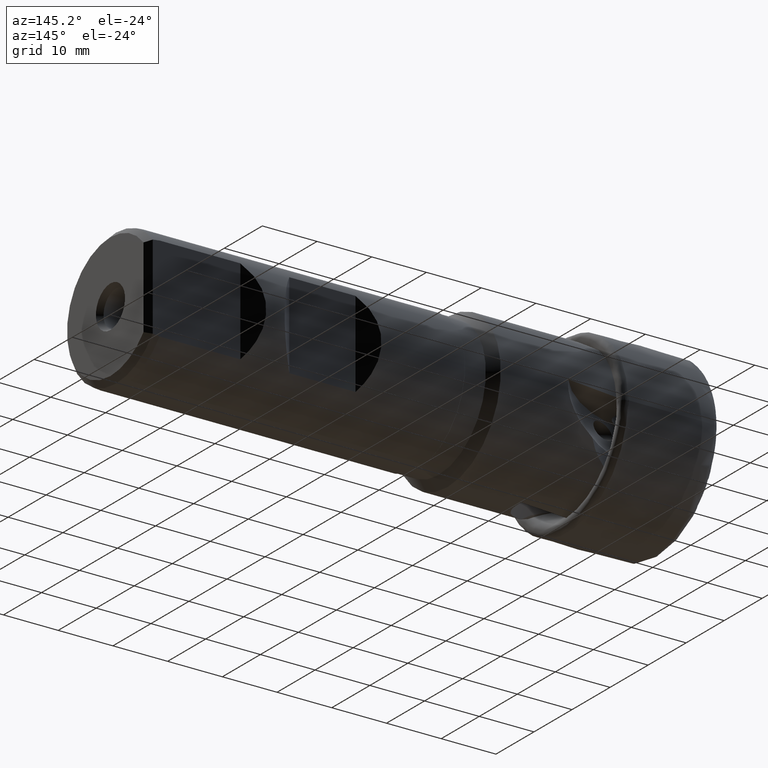
[diagram: clean part render]
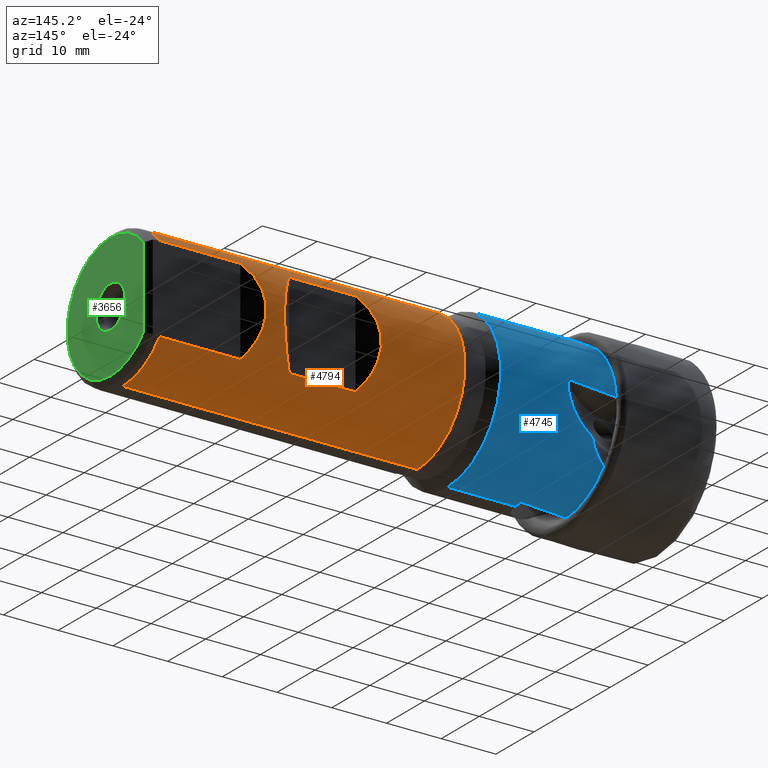
[diagram: same view with three faces highlighted in distinct colors, each labeled with its STEP entity id]
A machine part, auxiliary view with three faces highlighted in distinct colors.
Their STEP definitions:

[orange] entity #4794 — the highlighted cylindrical surface (partial cylindrical patch) has radius 12.5 mm, axis along (-1, -0, -0).
#35 =( BOUNDED_CURVE ( )  B_SPLINE_CURVE ( 3, ( #4806, #4804, #4801, #4802 ),
 .UNSPECIFIED., .F., .T. ) 
 B_SPLINE_CURVE_WITH_KNOTS ( ( 4, 4 ),
 ( 5.600687989903613100, 6.965682624455559400 ),
 .UNSPECIFIED. ) 
 CURVE ( )  GEOMETRIC_REPRESENTATION_ITEM ( )  RATIONAL_B_SPLINE_CURVE ( ( 1.000000000000000000, 0.8506666666666660200, 0.8506666666666660200, 1.000000000000000000 ) ) 
 REPRESENTATION_ITEM ( '' )  );
#38 =( BOUNDED_CURVE ( )  B_SPLINE_CURVE ( 3, ( #1768, #1692, #3803, #3804 ),
 .UNSPECIFIED., .F., .T. ) 
 B_SPLINE_CURVE_WITH_KNOTS ( ( 4, 4 ),
 ( 2.459095336313821300, 3.824089970865765000 ),
 .UNSPECIFIED. ) 
 CURVE ( )  GEOMETRIC_REPRESENTATION_ITEM ( )  RATIONAL_B_SPLINE_CURVE ( ( 1.000000000000000000, 0.8506666666666666800, 0.8506666666666666800, 1.000000000000000000 ) ) 
 REPRESENTATION_ITEM ( '' )  );
#192 = VECTOR ( 'NONE', #1654, 1000.000000000000000 ) ;
#193 = LINE ( 'NONE', #1661, #192 ) ;
#199 = CIRCLE ( 'NONE', #4656, 12.50000000000000000 ) ;
#202 = LINE ( 'NONE', #1804, #203 ) ;
#203 = VECTOR ( 'NONE', #1647, 1000.000000000000000 ) ;
#206 = CIRCLE ( 'NONE', #4662, 12.50000000000000000 ) ;
#1647 = DIRECTION ( 'NONE',  ( -1.000000000000000000, -0.0000000000000000000, -0.0000000000000000000 ) ) ;
#1654 = DIRECTION ( 'NONE',  ( -1.000000000000000000, -0.0000000000000000000, -0.0000000000000000000 ) ) ;
#1661 = CARTESIAN_POINT ( 'NONE',  ( -2.103352214621875100E-015, 9.699999999999983300, 7.884161337770832400 ) ) ;
#1692 = CARTESIAN_POINT ( 'NONE',  ( 77.04717868338553900, 13.59717868338557900, -3.089404912919598200 ) ) ;
#1747 = DIRECTION ( 'NONE',  ( 1.000000000000000000, 0.0000000000000000000, 0.0000000000000000000 ) ) ;
#1760 = DIRECTION ( 'NONE',  ( 0.0000000000000000000, 0.0000000000000000000, -1.000000000000000000 ) ) ;
#1768 = CARTESIAN_POINT ( 'NONE',  ( 73.14999999999999100, 9.699999999999999300, -7.884161337770813700 ) ) ;
#1781 = CARTESIAN_POINT ( 'NONE',  ( 43.00000000000000000, 0.0000000000000000000, 0.0000000000000000000 ) ) ;
#1804 = CARTESIAN_POINT ( 'NONE',  ( 0.0000000000000000000, 9.699999999999999300, 7.884161337770813700 ) ) ;
#2414 = AXIS2_PLACEMENT_3D ( 'NONE', #2793, #2794, #2792 ) ;
#2424 = AXIS2_PLACEMENT_3D ( 'NONE', #3314, #3315, #3316 ) ;
#2543 = FACE_BOUND ( 'NONE', #4897, .T. ) ;
#2551 = FACE_OUTER_BOUND ( 'NONE', #4892, .T. ) ;
#2553 = CYLINDRICAL_SURFACE ( 'NONE', #2414, 12.50000000000000000 ) ;
#2561 = CIRCLE ( 'NONE', #2424, 12.50000000000000000 ) ;
#2563 = LINE ( 'NONE', #3353, #2569 ) ;
#2568 = LINE ( 'NONE', #3415, #2573 ) ;
#2569 = VECTOR ( 'NONE', #3354, 1000.000000000000000 ) ;
#2572 = LINE ( 'NONE', #3417, #2575 ) ;
#2573 = VECTOR ( 'NONE', #3416, 1000.000000000000000 ) ;
#2575 = VECTOR ( 'NONE', #3418, 1000.000000000000000 ) ;
#2587 = LINE ( 'NONE', #3493, #2590 ) ;
#2590 = VECTOR ( 'NONE', #3494, 1000.000000000000000 ) ;
#2792 = DIRECTION ( 'NONE',  ( 0.0000000000000000000, 0.0000000000000000000, 1.000000000000000000 ) ) ;
#2793 = CARTESIAN_POINT ( 'NONE',  ( 0.0000000000000000000, 0.0000000000000000000, 0.0000000000000000000 ) ) ;
#2794 = DIRECTION ( 'NONE',  ( -1.000000000000000000, -0.0000000000000000000, -0.0000000000000000000 ) ) ;
#3036 = CARTESIAN_POINT ( 'NONE',  ( 96.84999999999998000, 1.530808498934191500E-015, -12.50000000000000000 ) ) ;
#3038 = CARTESIAN_POINT ( 'NONE',  ( 61.04999999999999000, 9.699999999999999300, -7.884161337770820800 ) ) ;
#3102 = CARTESIAN_POINT ( 'NONE',  ( 73.14999999999999100, 9.699999999999999300, 7.884161337770813700 ) ) ;
#3115 = CARTESIAN_POINT ( 'NONE',  ( 96.84999999999998000, 9.699999999999983300, -7.884161337770832400 ) ) ;
#3186 = CARTESIAN_POINT ( 'NONE',  ( 96.84999999999998000, 0.0000000000000000000, 12.50000000000000000 ) ) ;
#3207 = CARTESIAN_POINT ( 'NONE',  ( 73.14999999999999100, 9.699999999999999300, -7.884161337770813700 ) ) ;
#3238 = CARTESIAN_POINT ( 'NONE',  ( 43.00000000000000000, 0.0000000000000000000, -12.50000000000000400 ) ) ;
#3240 = CARTESIAN_POINT ( 'NONE',  ( 43.00000000000000000, 1.530808498934191900E-015, 12.50000000000000400 ) ) ;
#3250 = CARTESIAN_POINT ( 'NONE',  ( 82.09999999999999400, 9.700000000000001100, -7.884161337770832400 ) ) ;
#3255 = CARTESIAN_POINT ( 'NONE',  ( 61.04999999999999000, 9.699999999999999300, 7.884161337770820800 ) ) ;
#3265 = CARTESIAN_POINT ( 'NONE',  ( 96.84999999999998000, 9.700000000000004600, 7.884161337770806600 ) ) ;
#3270 = CARTESIAN_POINT ( 'NONE',  ( 82.09999999999999400, 9.700000000000001100, 7.884161337770806600 ) ) ;
#3314 = CARTESIAN_POINT ( 'NONE',  ( 96.84999999999998000, 0.0000000000000000000, 0.0000000000000000000 ) ) ;
#3315 = DIRECTION ( 'NONE',  ( -1.000000000000000000, -0.0000000000000000000, -0.0000000000000000000 ) ) ;
#3316 = DIRECTION ( 'NONE',  ( 0.0000000000000000000, 0.0000000000000000000, 1.000000000000000000 ) ) ;
#3353 = CARTESIAN_POINT ( 'NONE',  ( 0.0000000000000000000, 0.0000000000000000000, 12.50000000000000000 ) ) ;
#3354 = DIRECTION ( 'NONE',  ( -1.000000000000000000, -0.0000000000000000000, -0.0000000000000000000 ) ) ;
#3415 = CARTESIAN_POINT ( 'NONE',  ( 0.0000000000000000000, 9.699999999999999300, -7.884161337770813700 ) ) ;
#3416 = DIRECTION ( 'NONE',  ( 1.000000000000000000, 0.0000000000000000000, 0.0000000000000000000 ) ) ;
#3417 = CARTESIAN_POINT ( 'NONE',  ( -2.103352214621875100E-015, 9.699999999999983300, -7.884161337770832400 ) ) ;
#3418 = DIRECTION ( 'NONE',  ( 1.000000000000000000, 0.0000000000000000000, 0.0000000000000000000 ) ) ;
#3493 = CARTESIAN_POINT ( 'NONE',  ( 0.0000000000000000000, 1.530808498934191500E-015, -12.50000000000000000 ) ) ;
#3494 = DIRECTION ( 'NONE',  ( -1.000000000000000000, -0.0000000000000000000, -0.0000000000000000000 ) ) ;
#3588 = CARTESIAN_POINT ( 'NONE',  ( 82.09999999999999400, 9.700000000000001100, 7.884161337770806600 ) ) ;
#3589 = CARTESIAN_POINT ( 'NONE',  ( 78.20282131661443300, 13.59717868338558600, 3.089404912919591100 ) ) ;
#3594 = CARTESIAN_POINT ( 'NONE',  ( 78.20282131661443300, 13.59717868338557900, -3.089404912919611500 ) ) ;
#3595 = CARTESIAN_POINT ( 'NONE',  ( 82.09999999999999400, 9.700000000000001100, -7.884161337770832400 ) ) ;
#3748 = EDGE_CURVE ( 'NONE', #5244, #5249, #193, .T. ) ;
#3793 = DIRECTION ( 'NONE',  ( 0.0000000000000000000, 0.0000000000000000000, 1.000000000000000000 ) ) ;
#3799 = DIRECTION ( 'NONE',  ( -1.000000000000000000, -0.0000000000000000000, -0.0000000000000000000 ) ) ;
#3803 = CARTESIAN_POINT ( 'NONE',  ( 77.04717868338553900, 13.59717868338558400, 3.089404912919595500 ) ) ;
#3804 = CARTESIAN_POINT ( 'NONE',  ( 73.14999999999999100, 9.699999999999999300, 7.884161337770813700 ) ) ;
#3820 = CARTESIAN_POINT ( 'NONE',  ( 96.84999999999998000, 0.0000000000000000000, 0.0000000000000000000 ) ) ;
#4225 = EDGE_CURVE ( 'NONE', #5217, #5219, #199, .T. ) ;
#4298 = EDGE_CURVE ( 'NONE', #5082, #5234, #202, .T. ) ;
#4303 = EDGE_CURVE ( 'NONE', #5186, #5082, #38, .T. ) ;
#4305 = EDGE_CURVE ( 'NONE', #5094, #5049, #206, .T. ) ;
#4309 = EDGE_CURVE ( 'NONE', #5234, #5050, #35, .T. ) ;
#4656 = AXIS2_PLACEMENT_3D ( 'NONE', #1781, #1747, #1760 ) ;
#4662 = AXIS2_PLACEMENT_3D ( 'NONE', #3820, #3799, #3793 ) ;
#4794 = ADVANCED_FACE ( 'NONE', ( #2543, #2551 ), #2553, .T. ) ;
#4801 = CARTESIAN_POINT ( 'NONE',  ( 57.15282131661440700, 13.59717868338558600, -3.089404912919603500 ) ) ;
#4802 = CARTESIAN_POINT ( 'NONE',  ( 61.04999999999999000, 9.699999999999999300, -7.884161337770820800 ) ) ;
#4804 = CARTESIAN_POINT ( 'NONE',  ( 57.15282131661440700, 13.59717868338558600, 3.089404912919605700 ) ) ;
#4806 = CARTESIAN_POINT ( 'NONE',  ( 61.04999999999999000, 9.699999999999999300, 7.884161337770820800 ) ) ;
#4892 = EDGE_LOOP ( 'NONE', ( #5268, #5339, #5369, #5301, #5303, #5330, #5331, #5332 ) ) ;
#4897 = EDGE_LOOP ( 'NONE', ( #5279, #5300, #5299, #5269 ) ) ;
#5049 = VERTEX_POINT ( 'NONE', #3036 ) ;
#5050 = VERTEX_POINT ( 'NONE', #3038 ) ;
#5082 = VERTEX_POINT ( 'NONE', #3102 ) ;
#5094 = VERTEX_POINT ( 'NONE', #3115 ) ;
#5165 = VERTEX_POINT ( 'NONE', #3186 ) ;
#5186 = VERTEX_POINT ( 'NONE', #3207 ) ;
#5217 = VERTEX_POINT ( 'NONE', #3238 ) ;
#5219 = VERTEX_POINT ( 'NONE', #3240 ) ;
#5229 = VERTEX_POINT ( 'NONE', #3250 ) ;
#5234 = VERTEX_POINT ( 'NONE', #3255 ) ;
#5244 = VERTEX_POINT ( 'NONE', #3265 ) ;
#5249 = VERTEX_POINT ( 'NONE', #3270 ) ;
#5268 = ORIENTED_EDGE ( 'NONE', *, *, #4305, .T. ) ;
#5269 = ORIENTED_EDGE ( 'NONE', *, *, #5601, .T. ) ;
#5279 = ORIENTED_EDGE ( 'NONE', *, *, #4303, .T. ) ;
#5299 = ORIENTED_EDGE ( 'NONE', *, *, #4309, .T. ) ;
#5300 = ORIENTED_EDGE ( 'NONE', *, *, #4298, .T. ) ;
#5301 = ORIENTED_EDGE ( 'NONE', *, *, #5457, .F. ) ;
#5303 = ORIENTED_EDGE ( 'NONE', *, *, #5455, .T. ) ;
#5330 = ORIENTED_EDGE ( 'NONE', *, *, #3748, .T. ) ;
#5331 = ORIENTED_EDGE ( 'NONE', *, *, #5919, .T. ) ;
#5332 = ORIENTED_EDGE ( 'NONE', *, *, #5602, .T. ) ;
#5339 = ORIENTED_EDGE ( 'NONE', *, *, #5895, .T. ) ;
#5369 = ORIENTED_EDGE ( 'NONE', *, *, #4225, .T. ) ;
#5455 = EDGE_CURVE ( 'NONE', #5165, #5244, #2561, .T. ) ;
#5457 = EDGE_CURVE ( 'NONE', #5165, #5219, #2563, .T. ) ;
#5495 =( BOUNDED_CURVE ( )  B_SPLINE_CURVE ( 3, ( #3588, #3589, #3594, #3595 ),
 .UNSPECIFIED., .F., .F. ) 
 B_SPLINE_CURVE_WITH_KNOTS ( ( 4, 4 ),
 ( 5.600687989903614800, 6.965682624455559400 ),
 .UNSPECIFIED. ) 
 CURVE ( )  GEOMETRIC_REPRESENTATION_ITEM ( )  RATIONAL_B_SPLINE_CURVE ( ( 1.000000000000000000, 0.8506666666666664600, 0.8506666666666664600, 1.000000000000000000 ) ) 
 REPRESENTATION_ITEM ( '' )  );
#5601 = EDGE_CURVE ( 'NONE', #5050, #5186, #2568, .T. ) ;
#5602 = EDGE_CURVE ( 'NONE', #5229, #5094, #2572, .T. ) ;
#5895 = EDGE_CURVE ( 'NONE', #5049, #5217, #2587, .T. ) ;
#5919 = EDGE_CURVE ( 'NONE', #5249, #5229, #5495, .T. ) ;

[blue] entity #4745 — the highlighted cylindrical surface (partial cylindrical patch) has radius 14 mm, axis along (-1, -0, -0).
#10 = B_SPLINE_CURVE_WITH_KNOTS ( 'NONE', 3,
 ( #648, #646, #644, #649, #650, #651, #652, #653, #654, #655, #656, #657, #658, #659 ),
 .UNSPECIFIED., .F., .F.,
 ( 4, 2, 2, 2, 2, 2, 4 ),
 ( 0.002489108446999668900, 0.004653805925197981200, 0.006818503403396293900, 0.007900852142495449300, 0.008983200881594604800, 0.01006554962069376200, 0.01114789835979291800 ),
 .UNSPECIFIED. ) ;
#34 = B_SPLINE_CURVE_WITH_KNOTS ( 'NONE', 3,
 ( #5503, #5504, #5532, #4281, #4287, #4282 ),
 .UNSPECIFIED., .F., .F.,
 ( 4, 2, 4 ),
 ( 0.01114789835979289000, 0.01192257297657446000, 0.01269724759335602900 ),
 .UNSPECIFIED. ) ;
#196 = CIRCLE ( 'NONE', #4655, 14.00000000000000000 ) ;
#208 = LINE ( 'NONE', #3830, #215 ) ;
#215 = VECTOR ( 'NONE', #631, 1000.000000000000000 ) ;
#221 = CIRCLE ( 'NONE', #4668, 14.00000000000000000 ) ;
#284 = LINE ( 'NONE', #1013, #287 ) ;
#287 = VECTOR ( 'NONE', #1015, 1000.000000000000000 ) ;
#301 = CIRCLE ( 'NONE', #4680, 14.00000000000000000 ) ;
#531 = FACE_OUTER_BOUND ( 'NONE', #4948, .T. ) ;
#550 = CYLINDRICAL_SURFACE ( 'NONE', #2361, 14.00000000000000000 ) ;
#631 = DIRECTION ( 'NONE',  ( -1.000000000000000000, -0.0000000000000000000, -0.0000000000000000000 ) ) ;
#644 = CARTESIAN_POINT ( 'NONE',  ( 21.05239786403081900, 5.576336529999395900, 12.84884781127164600 ) ) ;
#646 = CARTESIAN_POINT ( 'NONE',  ( 20.43754586483774100, 5.922342788448008700, 12.69023503202999100 ) ) ;
#648 = CARTESIAN_POINT ( 'NONE',  ( 19.80157853539212100, 6.227652904653830000, 12.53859399211742200 ) ) ;
#649 = CARTESIAN_POINT ( 'NONE',  ( 22.22636501476602100, 4.769628578532325100, 13.16962650935376900 ) ) ;
#650 = CARTESIAN_POINT ( 'NONE',  ( 22.77268834391250600, 4.317821035556701000, 13.32836116234083300 ) ) ;
#651 = CARTESIAN_POINT ( 'NONE',  ( 23.50820060099896800, 3.542005159391010200, 13.54719147620936100 ) ) ;
#652 = CARTESIAN_POINT ( 'NONE',  ( 23.74023276409230100, 3.265088439110581200, 13.61714298156216100 ) ) ;
#653 = CARTESIAN_POINT ( 'NONE',  ( 24.15832906061250500, 2.687381880522208700, 13.74282955303463200 ) ) ;
#654 = CARTESIAN_POINT ( 'NONE',  ( 24.34602081103046700, 2.385245480152957700, 13.79904544336001100 ) ) ;
#655 = CARTESIAN_POINT ( 'NONE',  ( 24.67268263904129800, 1.750255194243713500, 13.89387123531551000 ) ) ;
#656 = CARTESIAN_POINT ( 'NONE',  ( 24.81231664466189100, 1.415614675867816100, 13.93265634214685100 ) ) ;
#657 = CARTESIAN_POINT ( 'NONE',  ( 25.03000976073055700, 0.7165721249858765200, 13.98604311621376400 ) ) ;
#658 = CARTESIAN_POINT ( 'NONE',  ( 25.10545616064919400, 0.3613048030773800000, 14.00000000000000000 ) ) ;
#659 = CARTESIAN_POINT ( 'NONE',  ( 25.14587864204081700, 3.653085149169856900E-016, 14.00000000000000000 ) ) ;
#759 = CARTESIAN_POINT ( 'NONE',  ( 37.50000000000000000, 0.0000000000000000000, 0.0000000000000000000 ) ) ;
#760 = DIRECTION ( 'NONE',  ( -1.000000000000000000, -0.0000000000000000000, -0.0000000000000000000 ) ) ;
#761 = DIRECTION ( 'NONE',  ( 0.0000000000000000000, 0.0000000000000000000, 1.000000000000000000 ) ) ;
#854 = CARTESIAN_POINT ( 'NONE',  ( 17.07051191640707800, 8.944587076885998300, 10.77987969575492500 ) ) ;
#859 = CARTESIAN_POINT ( 'NONE',  ( 20.17664456306637200, 12.73164708209774100, -5.826283693381698800 ) ) ;
#879 = CARTESIAN_POINT ( 'NONE',  ( 20.54443576102046300, 12.82007336689216400, -5.630217391787047300 ) ) ;
#880 = CARTESIAN_POINT ( 'NONE',  ( 16.35082059415270800, 9.288632180131331900, 10.47479413746297400 ) ) ;
#882 = CARTESIAN_POINT ( 'NONE',  ( 17.72518069916952000, 8.527225421992113800, 11.12102279815206400 ) ) ;
#883 = CARTESIAN_POINT ( 'NONE',  ( 18.60339112254267500, 7.758456399962644100, 11.65778858353934800 ) ) ;
#884 = CARTESIAN_POINT ( 'NONE',  ( 18.87626559755048200, 7.479779087457552900, 11.83946802189145400 ) ) ;
#885 = CARTESIAN_POINT ( 'NONE',  ( 19.37300097129360300, 6.884835730485656700, 12.19504551868445200 ) ) ;
#886 = CARTESIAN_POINT ( 'NONE',  ( 19.59853171944318700, 6.567183761543512700, 12.36995623827827200 ) ) ;
#887 = CARTESIAN_POINT ( 'NONE',  ( 19.80157853539212100, 6.227652904653830000, 12.53859399211742200 ) ) ;
#888 = CARTESIAN_POINT ( 'NONE',  ( 19.80157853539214200, 12.64537183316280700, -6.007875764449489800 ) ) ;
#890 = CARTESIAN_POINT ( 'NONE',  ( 21.26308566944063800, 12.99927192716558700, -5.203129671157907600 ) ) ;
#891 = CARTESIAN_POINT ( 'NONE',  ( 21.61548314971811300, 13.09047395589652800, -4.970905618503183900 ) ) ;
#892 = CARTESIAN_POINT ( 'NONE',  ( 22.28876591421871100, 13.26943783100323200, -4.471289602252593200 ) ) ;
#893 = CARTESIAN_POINT ( 'NONE',  ( 22.61038177865715000, 13.35736075327387300, -4.203751515653137500 ) ) ;
#894 = CARTESIAN_POINT ( 'NONE',  ( 23.21822919288820200, 13.52570578016639200, -3.625726995628679300 ) ) ;
#895 = CARTESIAN_POINT ( 'NONE',  ( 23.50668390803825900, 13.60676303934652500, -3.312336800745201900 ) ) ;
#896 = CARTESIAN_POINT ( 'NONE',  ( 24.02645569150243400, 13.75149854345351000, -2.647992314923471200 ) ) ;
#897 = CARTESIAN_POINT ( 'NONE',  ( 24.25807039769267000, 13.81524710917444500, -2.297758551223429500 ) ) ;
#898 = CARTESIAN_POINT ( 'NONE',  ( 24.55610530137917600, 13.89267118573282300, -1.740366078423546000 ) ) ;
#899 = CARTESIAN_POINT ( 'NONE',  ( 24.64717919289973500, 13.91543091294959200, -1.549202333070362800 ) ) ;
#900 = CARTESIAN_POINT ( 'NONE',  ( 24.81089743573597100, 13.95369404257581000, -1.154845413052365500 ) ) ;
#901 = CARTESIAN_POINT ( 'NONE',  ( 24.88390009257683400, 13.96924633487470600, -0.9501780156038925900 ) ) ;
#902 = CARTESIAN_POINT ( 'NONE',  ( 25.06710763338861300, 14.00217792123935800, -0.3312690220146152800 ) ) ;
#903 = CARTESIAN_POINT ( 'NONE',  ( 25.14333688134616900, 14.00633220759949000, 0.08981913422077386600 ) ) ;
#904 = CARTESIAN_POINT ( 'NONE',  ( 25.18299939675310400, 13.98233683792778900, 0.7352611082843530900 ) ) ;
#905 = CARTESIAN_POINT ( 'NONE',  ( 25.18348884357215300, 13.96919737937099100, 0.9528263366297410300 ) ) ;
#906 = CARTESIAN_POINT ( 'NONE',  ( 25.15892895005812600, 13.93329250463636600, 1.381923815499471300 ) ) ;
#907 = CARTESIAN_POINT ( 'NONE',  ( 25.13401753410794000, 13.91049857769959200, 1.594807524555168100 ) ) ;
#908 = CARTESIAN_POINT ( 'NONE',  ( 25.09664496296224100, 13.88301685378778100, 1.806057318427246400 ) ) ;
#909 = CARTESIAN_POINT ( 'NONE',  ( 16.35082059415277600, 10.63530775963411300, -9.104407111825967300 ) ) ;
#910 = CARTESIAN_POINT ( 'NONE',  ( 17.07051191640698900, 10.93434243694328200, -8.755089931154714100 ) ) ;
#919 = CARTESIAN_POINT ( 'NONE',  ( 17.72518069916941700, 11.26814961636099400, -8.331838074386109100 ) ) ;
#920 = CARTESIAN_POINT ( 'NONE',  ( 18.60339112254260400, 11.79141678029043500, -7.553818284954092900 ) ) ;
#921 = CARTESIAN_POINT ( 'NONE',  ( 18.87626559755043900, 11.96820495826141900, -7.272012672954058800 ) ) ;
#922 = CARTESIAN_POINT ( 'NONE',  ( 19.37300097129358900, 12.31334510560635200, -6.670954245743089000 ) ) ;
#923 = CARTESIAN_POINT ( 'NONE',  ( 19.59853171944319400, 12.48268539418280900, -6.350298043765784300 ) ) ;
#924 = CARTESIAN_POINT ( 'NONE',  ( 19.80157853539214200, 12.64537183316280700, -6.007875764449489800 ) ) ;
#931 = CARTESIAN_POINT ( 'NONE',  ( 19.27250211487760700, 13.94209946540497700, 1.297464517068498400 ) ) ;
#937 = CARTESIAN_POINT ( 'NONE',  ( 16.35082059415270800, 13.96115809620197900, 1.042144238027524300 ) ) ;
#938 = CARTESIAN_POINT ( 'NONE',  ( 22.18850811302833700, 13.91604585147746500, 1.552166078702372300 ) ) ;
#939 = CARTESIAN_POINT ( 'NONE',  ( 25.09664496296224100, 13.88301685378778100, 1.806057318427246400 ) ) ;
#1013 = CARTESIAN_POINT ( 'NONE',  ( 0.0000000000000000000, 0.0000000000000000000, 14.00000000000000000 ) ) ;
#1015 = DIRECTION ( 'NONE',  ( -1.000000000000000000, -0.0000000000000000000, -0.0000000000000000000 ) ) ;
#1040 = CARTESIAN_POINT ( 'NONE',  ( 16.35082059415270800, 0.0000000000000000000, 0.0000000000000000000 ) ) ;
#1041 = DIRECTION ( 'NONE',  ( 1.000000000000000000, 0.0000000000000000000, 0.0000000000000000000 ) ) ;
#1042 = DIRECTION ( 'NONE',  ( 0.0000000000000000000, 3.552713678800500900E-015, 1.000000000000000000 ) ) ;
#1063 = CARTESIAN_POINT ( 'NONE',  ( 19.27250211487760400, 1.053943720478811100, -13.96261989421615700 ) ) ;
#1073 = CARTESIAN_POINT ( 'NONE',  ( 16.35082059415270800, 0.7983297089821997900, -13.97721966900987100 ) ) ;
#1077 = CARTESIAN_POINT ( 'NONE',  ( 22.18850811302829800, 1.309061188090594000, -13.94101540355408600 ) ) ;
#1078 = CARTESIAN_POINT ( 'NONE',  ( 25.09664496296217000, 1.563490194441801800, -13.91242244944727000 ) ) ;
#1662 = CARTESIAN_POINT ( 'NONE',  ( 16.35082059415270800, 0.0000000000000000000, 0.0000000000000000000 ) ) ;
#1681 = DIRECTION ( 'NONE',  ( 0.0000000000000000000, 0.0000000000000000000, 1.000000000000000000 ) ) ;
#1703 = DIRECTION ( 'NONE',  ( 1.000000000000000000, 0.0000000000000000000, 0.0000000000000000000 ) ) ;
#2173 = DIRECTION ( 'NONE',  ( 0.0000000000000000000, 0.0000000000000000000, 1.000000000000000000 ) ) ;
#2174 = CARTESIAN_POINT ( 'NONE',  ( 0.0000000000000000000, 0.0000000000000000000, 0.0000000000000000000 ) ) ;
#2175 = DIRECTION ( 'NONE',  ( -1.000000000000000000, -0.0000000000000000000, -0.0000000000000000000 ) ) ;
#2361 = AXIS2_PLACEMENT_3D ( 'NONE', #2174, #2175, #2173 ) ;
#3044 = CARTESIAN_POINT ( 'NONE',  ( 16.35082059415277600, 10.63530775963411300, -9.104407111825967300 ) ) ;
#3088 = CARTESIAN_POINT ( 'NONE',  ( 19.80157853539214200, 12.64537183316280700, -6.007875764449489800 ) ) ;
#3113 = CARTESIAN_POINT ( 'NONE',  ( 16.35082059415270800, 13.96115809620197900, 1.042144238027524300 ) ) ;
#3137 = CARTESIAN_POINT ( 'NONE',  ( 25.14587864204081700, 3.653085149169856900E-016, 14.00000000000000000 ) ) ;
#3138 = CARTESIAN_POINT ( 'NONE',  ( 16.35082059415270800, 9.288632180131331900, 10.47479413746297400 ) ) ;
#3139 = CARTESIAN_POINT ( 'NONE',  ( 19.80157853539212100, 6.227652904653830000, 12.53859399211742200 ) ) ;
#3187 = CARTESIAN_POINT ( 'NONE',  ( 25.09664496296217000, 1.563490194441801800, -13.91242244944727000 ) ) ;
#3246 = CARTESIAN_POINT ( 'NONE',  ( 25.14587864204080200, 3.366042242601999500E-015, -14.00000000000000000 ) ) ;
#3247 = CARTESIAN_POINT ( 'NONE',  ( 37.50000000000000000, 1.714505518806294600E-015, -14.00000000000000000 ) ) ;
#3248 = CARTESIAN_POINT ( 'NONE',  ( 37.50000000000000000, 0.0000000000000000000, 14.00000000000000000 ) ) ;
#3267 = CARTESIAN_POINT ( 'NONE',  ( 25.09664496296224100, 13.88301685378778100, 1.806057318427246400 ) ) ;
#3269 = CARTESIAN_POINT ( 'NONE',  ( 16.35082059415270800, 0.7983297089821997900, -13.97721966900987100 ) ) ;
#3717 =( BOUNDED_CURVE ( )  B_SPLINE_CURVE ( 3, ( #1073, #1063, #1077, #1078 ),
 .UNSPECIFIED., .F., .T. ) 
 B_SPLINE_CURVE_WITH_KNOTS ( ( 4, 4 ),
 ( 1.627850826518227400, 1.682707650518020300 ),
 .UNSPECIFIED. ) 
 CURVE ( )  GEOMETRIC_REPRESENTATION_ITEM ( )  RATIONAL_B_SPLINE_CURVE ( ( 1.000000000000000000, 0.9997492431263840200, 0.9997492431263840200, 1.000000000000000000 ) ) 
 REPRESENTATION_ITEM ( '' )  );
#3723 =( BOUNDED_CURVE ( )  B_SPLINE_CURVE ( 3, ( #937, #931, #938, #939 ),
 .UNSPECIFIED., .F., .T. ) 
 B_SPLINE_CURVE_WITH_KNOTS ( ( 4, 4 ),
 ( 1.627850826518227200, 1.682707650518020700 ),
 .UNSPECIFIED. ) 
 CURVE ( )  GEOMETRIC_REPRESENTATION_ITEM ( )  RATIONAL_B_SPLINE_CURVE ( ( 1.000000000000000000, 0.9997492431263840200, 0.9997492431263840200, 1.000000000000000000 ) ) 
 REPRESENTATION_ITEM ( '' )  );
#3731 = B_SPLINE_CURVE_WITH_KNOTS ( 'NONE', 3,
 ( #909, #910, #919, #920, #921, #922, #923, #924 ),
 .UNSPECIFIED., .F., .F.,
 ( 4, 2, 2, 4 ),
 ( 0.0004074063184695236700, 0.002951329899651100500, 0.004223291690241888500, 0.005495253480832677800 ),
 .UNSPECIFIED. ) ;
#3734 = B_SPLINE_CURVE_WITH_KNOTS ( 'NONE', 3,
 ( #880, #854, #882, #883, #884, #885, #886, #887 ),
 .UNSPECIFIED., .F., .F.,
 ( 4, 2, 2, 4 ),
 ( 0.0004074063184704791200, 0.002951329899652097100, 0.004223291690242910200, 0.005495253480833722100 ),
 .UNSPECIFIED. ) ;
#3736 = B_SPLINE_CURVE_WITH_KNOTS ( 'NONE', 3,
 ( #888, #859, #879, #890, #891, #892, #893, #894, #895, #896, #897, #898, #899, #900, #901, #902, #903, #904, #905, #906, #907, #908 ),
 .UNSPECIFIED., .F., .F.,
 ( 4, 2, 2, 2, 2, 2, 2, 2, 2, 2, 4 ),
 ( 0.002653844445881498600, 0.003930394890447791300, 0.005206945335014083500, 0.006483495779580375700, 0.007760046224146667900, 0.009036596668712959200, 0.009674871890996106600, 0.01031314711327925400, 0.01158969755784555100, 0.01222797278012869800, 0.01286624800241184700 ),
 .UNSPECIFIED. ) ;
#3739 = EDGE_CURVE ( 'NONE', #5248, #5053, #196, .T. ) ;
#3830 = CARTESIAN_POINT ( 'NONE',  ( 0.0000000000000000000, 1.714505518806294600E-015, -14.00000000000000000 ) ) ;
#4051 = ORIENTED_EDGE ( 'NONE', *, *, #4390, .F. ) ;
#4281 = CARTESIAN_POINT ( 'NONE',  ( 25.16912465158803200, 1.046432648033711200, -13.96330645113927800 ) ) ;
#4282 = CARTESIAN_POINT ( 'NONE',  ( 25.09664496296217000, 1.563490194441801800, -13.91242244944727000 ) ) ;
#4287 = CARTESIAN_POINT ( 'NONE',  ( 25.14207470974330500, 1.306153013970042600, -13.94134222670352400 ) ) ;
#4316 = EDGE_CURVE ( 'NONE', #5225, #5166, #34, .T. ) ;
#4322 = EDGE_CURVE ( 'NONE', #5226, #5225, #208, .T. ) ;
#4328 = EDGE_CURVE ( 'NONE', #5118, #5116, #10, .T. ) ;
#4337 = EDGE_CURVE ( 'NONE', #5227, #5226, #221, .T. ) ;
#4359 = EDGE_CURVE ( 'NONE', #5117, #5118, #3734, .T. ) ;
#4360 = EDGE_CURVE ( 'NONE', #5075, #5246, #3736, .T. ) ;
#4362 = EDGE_CURVE ( 'NONE', #5053, #5075, #3731, .T. ) ;
#4365 = EDGE_CURVE ( 'NONE', #5092, #5246, #3723, .T. ) ;
#4390 = EDGE_CURVE ( 'NONE', #5227, #5116, #284, .T. ) ;
#4400 = EDGE_CURVE ( 'NONE', #5092, #5117, #301, .T. ) ;
#4408 = EDGE_CURVE ( 'NONE', #5248, #5166, #3717, .T. ) ;
#4655 = AXIS2_PLACEMENT_3D ( 'NONE', #1662, #1703, #1681 ) ;
#4668 = AXIS2_PLACEMENT_3D ( 'NONE', #759, #760, #761 ) ;
#4680 = AXIS2_PLACEMENT_3D ( 'NONE', #1040, #1041, #1042 ) ;
#4745 = ADVANCED_FACE ( 'NONE', ( #531 ), #550, .T. ) ;
#4948 = EDGE_LOOP ( 'NONE', ( #5321, #5381, #5378, #5363, #5319, #5274, #5322, #5278, #5380, #5373, #5370, #4051 ) ) ;
#5053 = VERTEX_POINT ( 'NONE', #3044 ) ;
#5075 = VERTEX_POINT ( 'NONE', #3088 ) ;
#5092 = VERTEX_POINT ( 'NONE', #3113 ) ;
#5116 = VERTEX_POINT ( 'NONE', #3137 ) ;
#5117 = VERTEX_POINT ( 'NONE', #3138 ) ;
#5118 = VERTEX_POINT ( 'NONE', #3139 ) ;
#5166 = VERTEX_POINT ( 'NONE', #3187 ) ;
#5225 = VERTEX_POINT ( 'NONE', #3246 ) ;
#5226 = VERTEX_POINT ( 'NONE', #3247 ) ;
#5227 = VERTEX_POINT ( 'NONE', #3248 ) ;
#5246 = VERTEX_POINT ( 'NONE', #3267 ) ;
#5248 = VERTEX_POINT ( 'NONE', #3269 ) ;
#5274 = ORIENTED_EDGE ( 'NONE', *, *, #4362, .T. ) ;
#5278 = ORIENTED_EDGE ( 'NONE', *, *, #4365, .F. ) ;
#5319 = ORIENTED_EDGE ( 'NONE', *, *, #3739, .T. ) ;
#5321 = ORIENTED_EDGE ( 'NONE', *, *, #4337, .T. ) ;
#5322 = ORIENTED_EDGE ( 'NONE', *, *, #4360, .T. ) ;
#5363 = ORIENTED_EDGE ( 'NONE', *, *, #4408, .F. ) ;
#5370 = ORIENTED_EDGE ( 'NONE', *, *, #4328, .T. ) ;
#5373 = ORIENTED_EDGE ( 'NONE', *, *, #4359, .T. ) ;
#5378 = ORIENTED_EDGE ( 'NONE', *, *, #4316, .T. ) ;
#5380 = ORIENTED_EDGE ( 'NONE', *, *, #4400, .T. ) ;
#5381 = ORIENTED_EDGE ( 'NONE', *, *, #4322, .T. ) ;
#5503 = CARTESIAN_POINT ( 'NONE',  ( 25.14587864204080200, 3.366042242601999500E-015, -14.00000000000000000 ) ) ;
#5504 = CARTESIAN_POINT ( 'NONE',  ( 25.17481041712422400, 0.2585984071069998800, -14.00000000000000200 ) ) ;
#5532 = CARTESIAN_POINT ( 'NONE',  ( 25.18565968985858600, 0.5220970027823350600, -13.99272536195091600 ) ) ;

[green] entity #3656 — the highlighted planar face has unit normal (-1, 0, -0).
#129 = FACE_OUTER_BOUND ( 'NONE', #4902, .T. ) ;
#131 = FACE_BOUND ( 'NONE', #4903, .T. ) ;
#214 = CIRCLE ( 'NONE', #4666, 11.40000000000000000 ) ;
#269 = CIRCLE ( 'NONE', #4677, 11.40000000000000000 ) ;
#271 = CIRCLE ( 'NONE', #4678, 3.827350269189631100 ) ;
#455 = CIRCLE ( 'NONE', #4708, 11.40000000000000000 ) ;
#479 = LINE ( 'NONE', #1984, #482 ) ;
#481 = CIRCLE ( 'NONE', #4709, 3.827350269189631100 ) ;
#482 = VECTOR ( 'NONE', #1985, 1000.000000000000000 ) ;
#636 = CARTESIAN_POINT ( 'NONE',  ( 99.09999999999999400, 0.0000000000000000000, 0.0000000000000000000 ) ) ;
#637 = DIRECTION ( 'NONE',  ( -1.000000000000000000, -0.0000000000000000000, -0.0000000000000000000 ) ) ;
#638 = DIRECTION ( 'NONE',  ( 0.0000000000000000000, 0.0000000000000000000, 1.000000000000000000 ) ) ;
#999 = CARTESIAN_POINT ( 'NONE',  ( 99.09999999999999400, 0.0000000000000000000, 0.0000000000000000000 ) ) ;
#1000 = DIRECTION ( 'NONE',  ( -1.000000000000000000, -0.0000000000000000000, -0.0000000000000000000 ) ) ;
#1001 = DIRECTION ( 'NONE',  ( 0.0000000000000000000, 0.0000000000000000000, 1.000000000000000000 ) ) ;
#1006 = CARTESIAN_POINT ( 'NONE',  ( 99.09999999999999400, 0.0000000000000000000, 0.0000000000000000000 ) ) ;
#1007 = DIRECTION ( 'NONE',  ( -1.000000000000000000, -0.0000000000000000000, -0.0000000000000000000 ) ) ;
#1008 = DIRECTION ( 'NONE',  ( 0.0000000000000000000, 0.0000000000000000000, 1.000000000000000000 ) ) ;
#1739 = CARTESIAN_POINT ( 'NONE',  ( 99.09999999999999400, 8.700000000000006400, 7.366817494685197900 ) ) ;
#1984 = CARTESIAN_POINT ( 'NONE',  ( 99.09999999999999400, 8.700000000000006400, -10.00000000000000000 ) ) ;
#1985 = DIRECTION ( 'NONE',  ( -0.0000000000000000000, -0.0000000000000000000, 1.000000000000000000 ) ) ;
#1986 = CARTESIAN_POINT ( 'NONE',  ( 99.09999999999999400, 0.0000000000000000000, 0.0000000000000000000 ) ) ;
#1987 = DIRECTION ( 'NONE',  ( -1.000000000000000000, -0.0000000000000000000, -0.0000000000000000000 ) ) ;
#1988 = DIRECTION ( 'NONE',  ( 0.0000000000000000000, 0.0000000000000000000, 1.000000000000000000 ) ) ;
#1989 = CARTESIAN_POINT ( 'NONE',  ( 99.09999999999999400, 0.0000000000000000000, 0.0000000000000000000 ) ) ;
#1990 = DIRECTION ( 'NONE',  ( -1.000000000000000000, -0.0000000000000000000, -0.0000000000000000000 ) ) ;
#1991 = DIRECTION ( 'NONE',  ( 0.0000000000000000000, 0.0000000000000000000, 1.000000000000000000 ) ) ;
#3096 = CARTESIAN_POINT ( 'NONE',  ( 99.09999999999999400, 8.700000000000006400, -7.366817494685198800 ) ) ;
#3100 = CARTESIAN_POINT ( 'NONE',  ( 99.09999999999999400, 4.687152256378841900E-016, 3.827350269189631100 ) ) ;
#3111 = CARTESIAN_POINT ( 'NONE',  ( 99.09999999999999400, 1.457329690985350400E-015, -11.40000000000000000 ) ) ;
#3112 = CARTESIAN_POINT ( 'NONE',  ( 99.09999999999999400, 0.0000000000000000000, -3.827350269189631100 ) ) ;
#3120 = CARTESIAN_POINT ( 'NONE',  ( 99.09999999999999400, 0.0000000000000000000, 11.40000000000000000 ) ) ;
#3656 = ADVANCED_FACE ( 'NONE', ( #129, #131 ), #5720, .F. ) ;
#4116 = VERTEX_POINT ( 'NONE', #1739 ) ;
#4324 = EDGE_CURVE ( 'NONE', #5090, #5099, #214, .T. ) ;
#4383 = EDGE_CURVE ( 'NONE', #5079, #5090, #269, .T. ) ;
#4385 = EDGE_CURVE ( 'NONE', #5091, #5081, #271, .T. ) ;
#4581 = EDGE_CURVE ( 'NONE', #5079, #4116, #479, .T. ) ;
#4582 = EDGE_CURVE ( 'NONE', #5099, #4116, #455, .T. ) ;
#4583 = EDGE_CURVE ( 'NONE', #5081, #5091, #481, .T. ) ;
#4619 = AXIS2_PLACEMENT_3D ( 'NONE', #5785, #5814, #5732 ) ;
#4666 = AXIS2_PLACEMENT_3D ( 'NONE', #636, #637, #638 ) ;
#4677 = AXIS2_PLACEMENT_3D ( 'NONE', #999, #1000, #1001 ) ;
#4678 = AXIS2_PLACEMENT_3D ( 'NONE', #1006, #1007, #1008 ) ;
#4708 = AXIS2_PLACEMENT_3D ( 'NONE', #1986, #1987, #1988 ) ;
#4709 = AXIS2_PLACEMENT_3D ( 'NONE', #1989, #1990, #1991 ) ;
#4902 = EDGE_LOOP ( 'NONE', ( #5693, #5686, #5699, #5695 ) ) ;
#4903 = EDGE_LOOP ( 'NONE', ( #5697, #5658 ) ) ;
#5079 = VERTEX_POINT ( 'NONE', #3096 ) ;
#5081 = VERTEX_POINT ( 'NONE', #3100 ) ;
#5090 = VERTEX_POINT ( 'NONE', #3111 ) ;
#5091 = VERTEX_POINT ( 'NONE', #3112 ) ;
#5099 = VERTEX_POINT ( 'NONE', #3120 ) ;
#5658 = ORIENTED_EDGE ( 'NONE', *, *, #4583, .T. ) ;
#5686 = ORIENTED_EDGE ( 'NONE', *, *, #4581, .T. ) ;
#5693 = ORIENTED_EDGE ( 'NONE', *, *, #4383, .F. ) ;
#5695 = ORIENTED_EDGE ( 'NONE', *, *, #4324, .F. ) ;
#5697 = ORIENTED_EDGE ( 'NONE', *, *, #4385, .T. ) ;
#5699 = ORIENTED_EDGE ( 'NONE', *, *, #4582, .F. ) ;
#5720 = PLANE ( 'NONE',  #4619 ) ;
#5732 = DIRECTION ( 'NONE',  ( -0.0000000000000000000, 0.0000000000000000000, 1.000000000000000000 ) ) ;
#5785 = CARTESIAN_POINT ( 'NONE',  ( 99.09999999999999400, 11.40000000000000000, 0.0000000000000000000 ) ) ;
#5814 = DIRECTION ( 'NONE',  ( -1.000000000000000000, 0.0000000000000000000, -0.0000000000000000000 ) ) ;